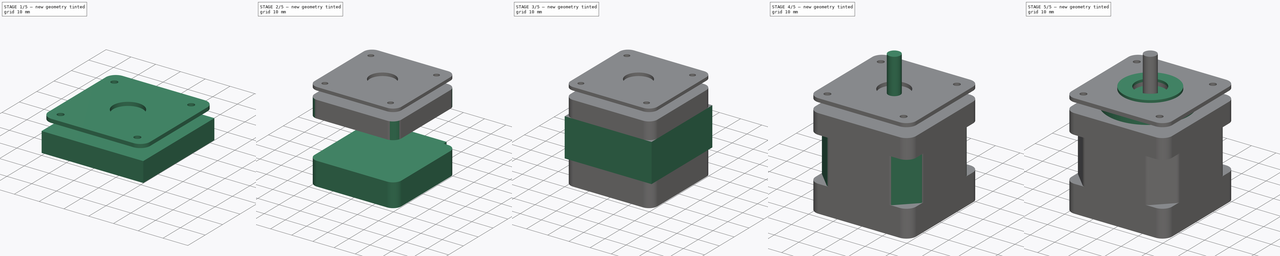
[diagram: build sequence overview — one tinted view per stage of 5, left to right]
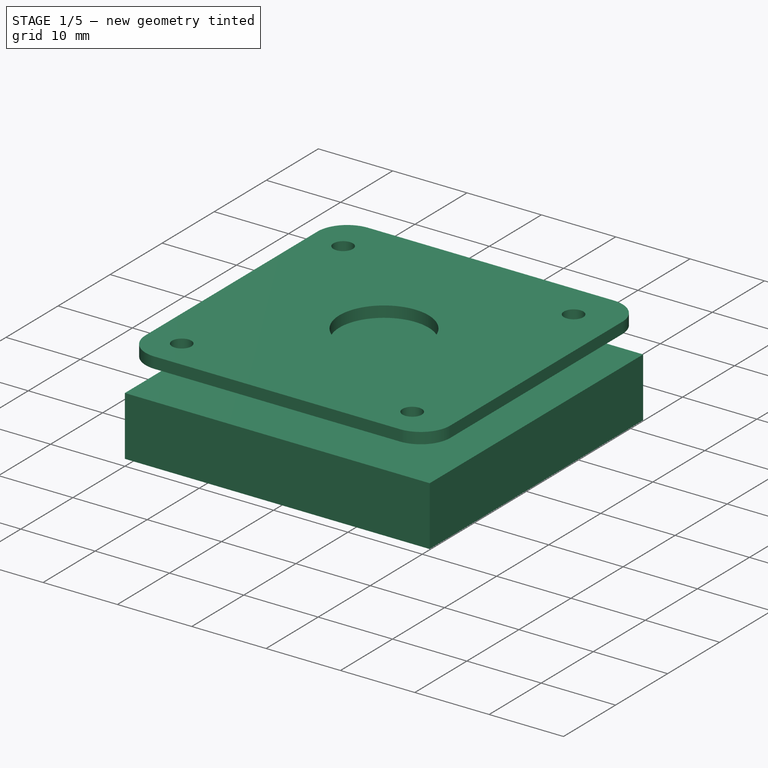
[diagram: stage 1 of 5 — iso view after this stage's code; geometry added in this stage tinted green]
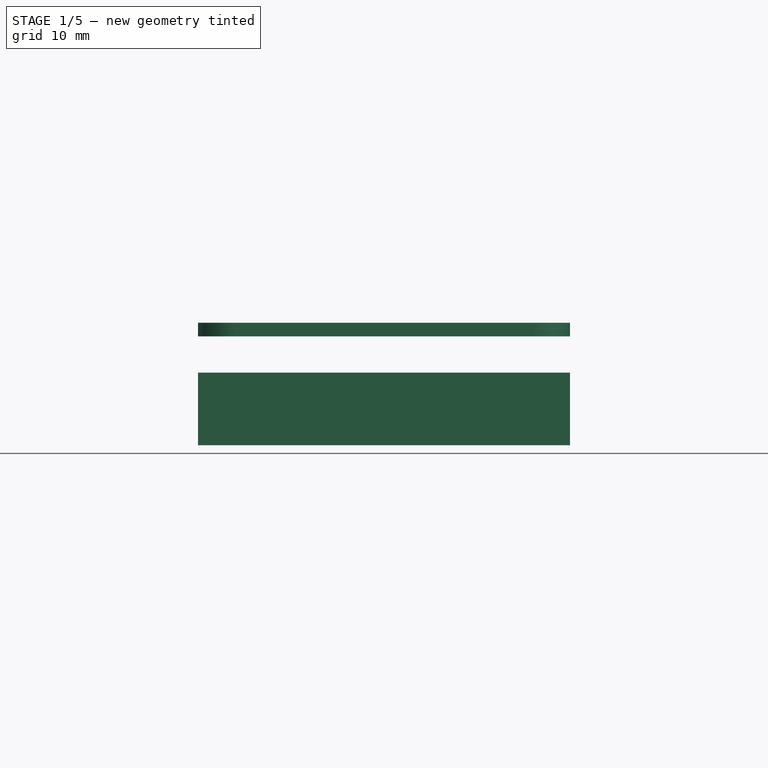
[diagram: stage 1 of 5 — front view after this stage's code; geometry added in this stage tinted green]
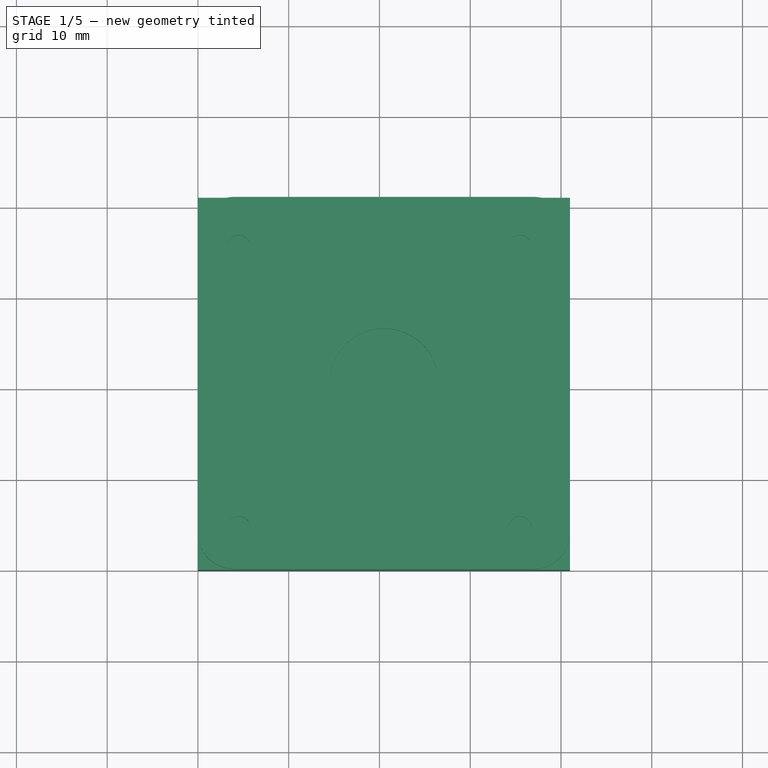
[diagram: stage 1 of 5 — top view after this stage's code; geometry added in this stage tinted green]
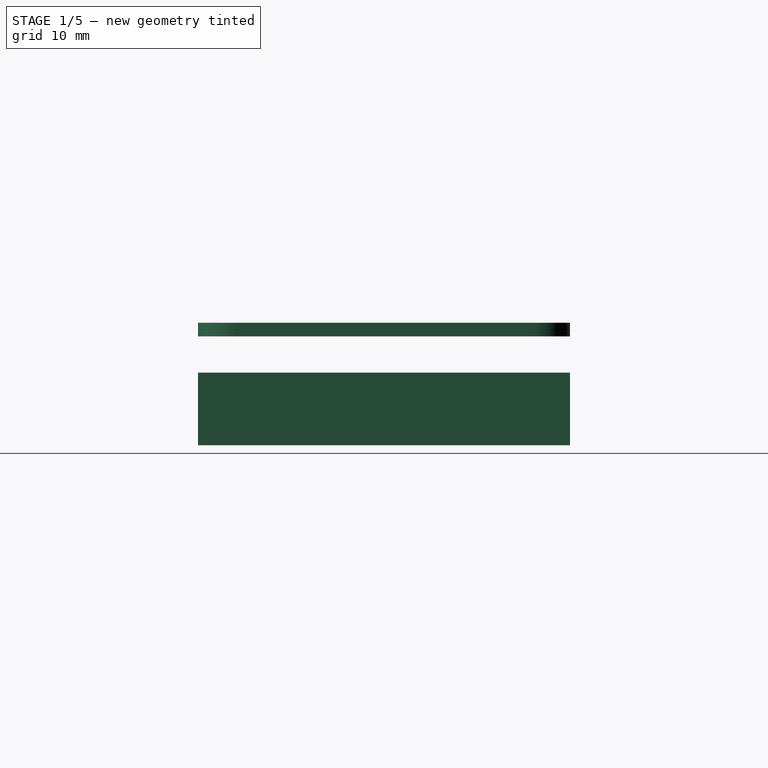
[diagram: stage 1 of 5 — right view after this stage's code; geometry added in this stage tinted green]
FCSTD DOCUMENT  (FreeCAD 0.16R6707 (Git))
Label: Nema17
License: All rights reserved
LicenseURL: http://en.wikipedia.org/wiki/All_rights_reserved
objects: Sketcher::SketchObject×7, PartDesign::Pad×7, PartDesign::Fillet×6, PartDesign::Chamfer×2, Part::MultiFuse×1
note: 30 computed .brp shape members not serialized (recipe doc carries the construction recipe); baked Part::Feature solids carry a one-line shape summary decoded from their .brp

FEATURE [Sketcher::SketchObject] Sketch002
  Placement = pos=(0,0,29) rot=(0,0,1;0rad)
  sketch-geometry (4):
    g0: LineSegment StartX=0 StartY=41 StartZ=0 EndX=41 EndY=41 EndZ=0
    g1: LineSegment StartX=41 StartY=41 StartZ=0 EndX=41 EndY=0 EndZ=0
    g2: LineSegment StartX=41 StartY=0 StartZ=0 EndX=0 EndY=0 EndZ=0
    g3: LineSegment StartX=0 StartY=0 StartZ=0 EndX=0 EndY=41 EndZ=0
  constraints (11):
    c: Coincident(g0,g1)
    c: Coincident(g1,g2)
    c: Coincident(g2,g3)
    c: Coincident(g3,g0)
    c: Horizontal(g0)
    c: Horizontal(g2)
    c: Vertical(g1)
    c: Vertical(g3)
    c: Coincident(g2,g-1)
    c: DistanceX(g2,g2) = 41
    c: DistanceY(g3,g3) = 41
FEATURE [PartDesign::Pad] Pad002
  Length = 8
  Length2 = 100
  Placement = pos=(0,0,29) rot=(0,0,1;0rad)
  Sketch = -> Sketch002
  Type = 0
FEATURE [Sketcher::SketchObject] Sketch004
  Placement = pos=(0,0,41) rot=(0,0,1;0rad)
  sketch-geometry (9):
    g0: LineSegment StartX=0 StartY=41 StartZ=0 EndX=41 EndY=41 EndZ=0
    g1: LineSegment StartX=41 StartY=41 StartZ=0 EndX=41 EndY=0 EndZ=0
    g2: LineSegment StartX=41 StartY=0 StartZ=0 EndX=0 EndY=0 EndZ=0
    g3: LineSegment StartX=0 StartY=0 StartZ=0 EndX=0 EndY=41 EndZ=0
    g4: Circle CenterX=4.5 CenterY=35.5 CenterZ=0 NormalX=0 NormalY=0 NormalZ=1 Radius=1.3
    g5: Circle CenterX=35.5 CenterY=35.5 CenterZ=0 NormalX=0 NormalY=0 NormalZ=1 Radius=1.3
    g6: Circle CenterX=4.5 CenterY=4.5 CenterZ=0 NormalX=0 NormalY=0 NormalZ=1 Radius=1.3
    g7: Circle CenterX=35.5 CenterY=4.5 CenterZ=0 NormalX=0 NormalY=0 NormalZ=1 Radius=1.3
    g8: Circle CenterX=20.5 CenterY=20.5 CenterZ=0 NormalX=0 NormalY=0 NormalZ=1 Radius=6
  constraints (26):
    c: Coincident(g0,g1)
    c: Coincident(g1,g2)
    c: Coincident(g2,g3)
    c: Coincident(g3,g0)
    c: Horizontal(g0)
    c: Horizontal(g2)
    c: Vertical(g1)
    c: Vertical(g3)
    c: Coincident(g2,g-1)
    c: DistanceX(g2,g2) = 41
    c: DistanceY(g3,g3) = 41
    c: Radius(g7) = 1.3
    c: Equal(g7,g5)
    c: Equal(g7,g4)
    c: Equal(g7,g6)
    c: DistanceY(g4,g5) = 0
    c: DistanceY(g6,g7) = 0
    c: DistanceX(g6,g4) = 0
    c: DistanceX(g5,g7) = 0
    c: DistanceX(g4,g5) = 31
    c: DistanceY(g6,g4) = 31
    c: DistanceY(g-1,g6) = 4.5
    c: DistanceX(g-1,g6) = 4.5
    c: Radius(g8) = 6
    c: DistanceY(g-1,g8) = 20.5
    c: DistanceX(g-1,g8) = 20.5
FEATURE [PartDesign::Pad] Pad004
  Length = 1.5
  Length2 = 100
  Placement = pos=(0,0,41) rot=(0,0,1;0rad)
  Sketch = -> Sketch004
  Type = 0
FEATURE [PartDesign::Fillet] Fillet005
  Base = -> Pad004 [Edge5,Edge2,Edge8,Edge1]
  Placement = pos=(0,0,41) rot=(0,0,1;0rad)
  Radius = 4
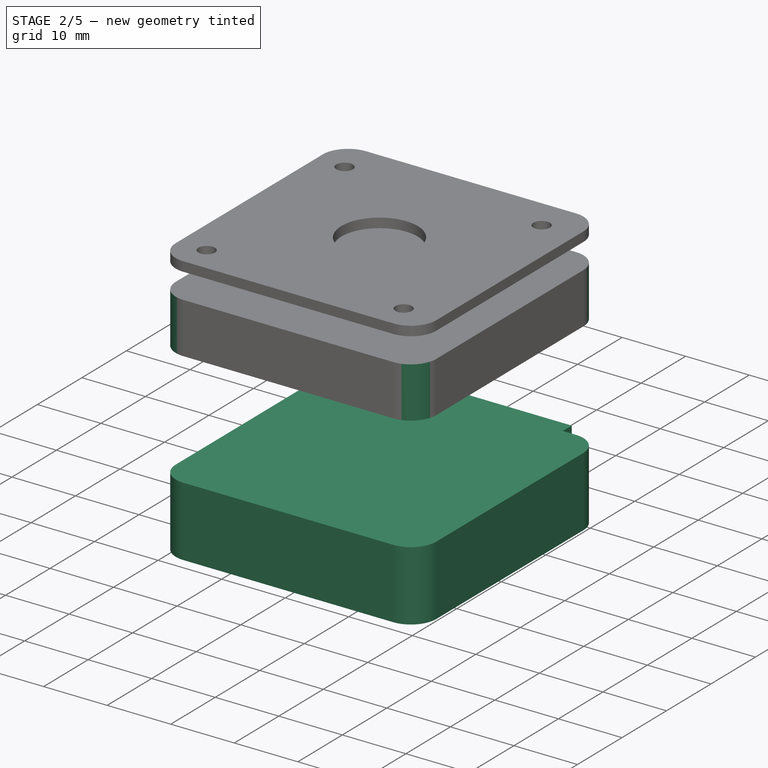
[diagram: stage 2 of 5 — iso view after this stage's code; geometry added in this stage tinted green]
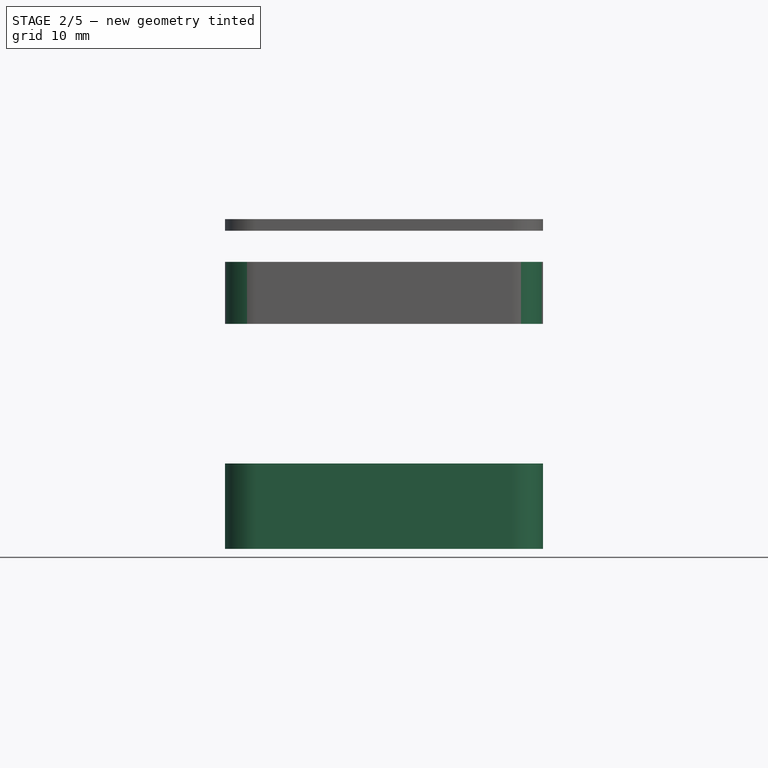
[diagram: stage 2 of 5 — front view after this stage's code; geometry added in this stage tinted green]
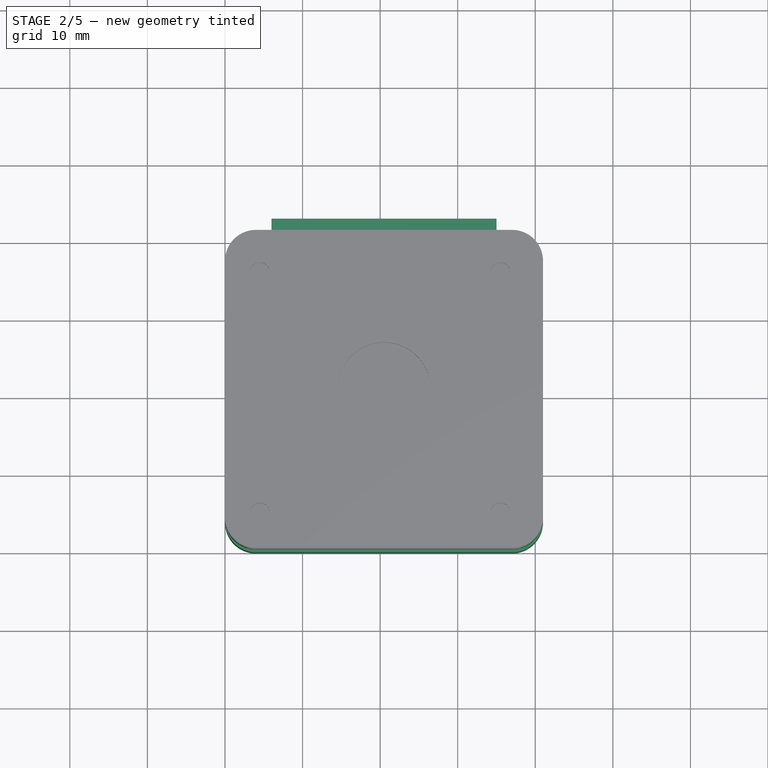
[diagram: stage 2 of 5 — top view after this stage's code; geometry added in this stage tinted green]
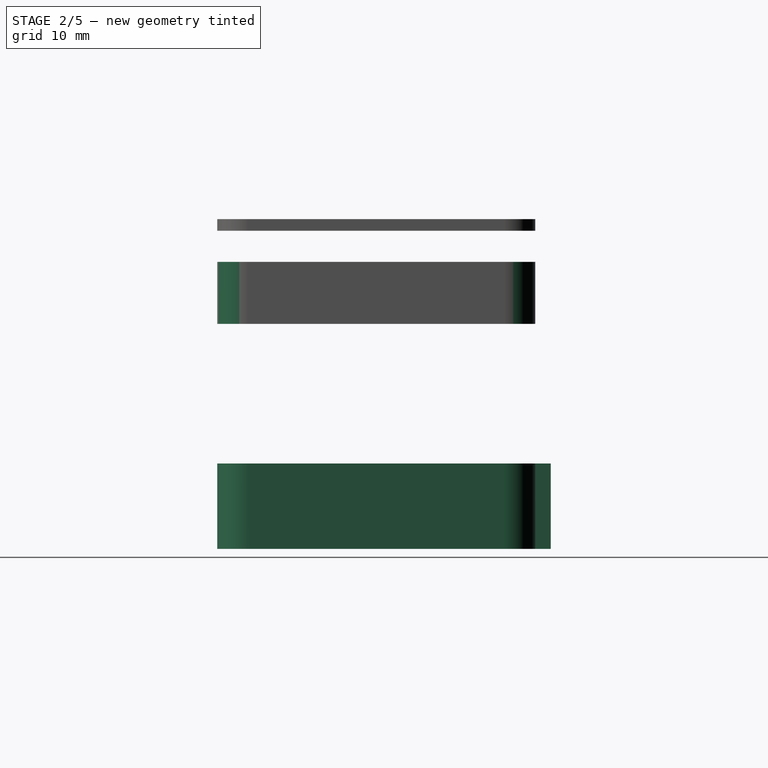
[diagram: stage 2 of 5 — right view after this stage's code; geometry added in this stage tinted green]
FEATURE [Sketcher::SketchObject] Sketch
  sketch-geometry (8):
    g0: LineSegment StartX=0 StartY=41 StartZ=0 EndX=0 EndY=0 EndZ=0
    g1: LineSegment StartX=0 StartY=0 StartZ=0 EndX=41 EndY=0 EndZ=0
    g2: LineSegment StartX=41 StartY=0 StartZ=0 EndX=41 EndY=41 EndZ=0
    g3: LineSegment StartX=41 StartY=41 StartZ=0 EndX=35 EndY=41 EndZ=0
    g4: LineSegment StartX=35 StartY=41 StartZ=0 EndX=35 EndY=43 EndZ=0
    g5: LineSegment StartX=35 StartY=43 StartZ=0 EndX=6 EndY=43 EndZ=0
    g6: LineSegment StartX=6 StartY=43 StartZ=0 EndX=6 EndY=41 EndZ=0
    g7: LineSegment StartX=6 StartY=41 StartZ=0 EndX=0 EndY=41 EndZ=0
  constraints (24):
    c: Vertical(g0)
    c: Coincident(g0,g1)
    c: Horizontal(g1)
    c: Coincident(g1,g2)
    c: Coincident(g2,g3)
    c: Horizontal(g3)
    c: Coincident(g3,g4)
    c: Coincident(g4,g5)
    c: Horizontal(g5)
    c: Coincident(g5,g6)
    c: Vertical(g6)
    c: Coincident(g6,g7)
    c: Coincident(g7,g0)
    c: Vertical(g4)
    c: Vertical(g2)
    c: Equal(g2,g0)
    c: Horizontal(g7)
    c: Equal(g7,g3)
    c: Equal(g6,g4)
    c: DistanceX(g1,g1) = 41
    c: DistanceY(g0,g0) = 41
    c: Coincident(g0,g-1)
    c: DistanceY(g6,g6) = 2
    c: DistanceX(g5,g5) = 29
FEATURE [PartDesign::Pad] Pad
  Length = 11
  Length2 = 100
  Sketch = -> Sketch
  Type = 0
FEATURE [PartDesign::Fillet] Fillet001
  Base = -> Pad [Edge2,Edge5,Edge1,Edge8]
  Radius = 4
FEATURE [PartDesign::Fillet] Fillet004
  Base = -> Pad002 [Edge1,Edge2,Edge8,Edge5]
  Placement = pos=(0,0,29) rot=(0,0,1;0rad)
  Radius = 4
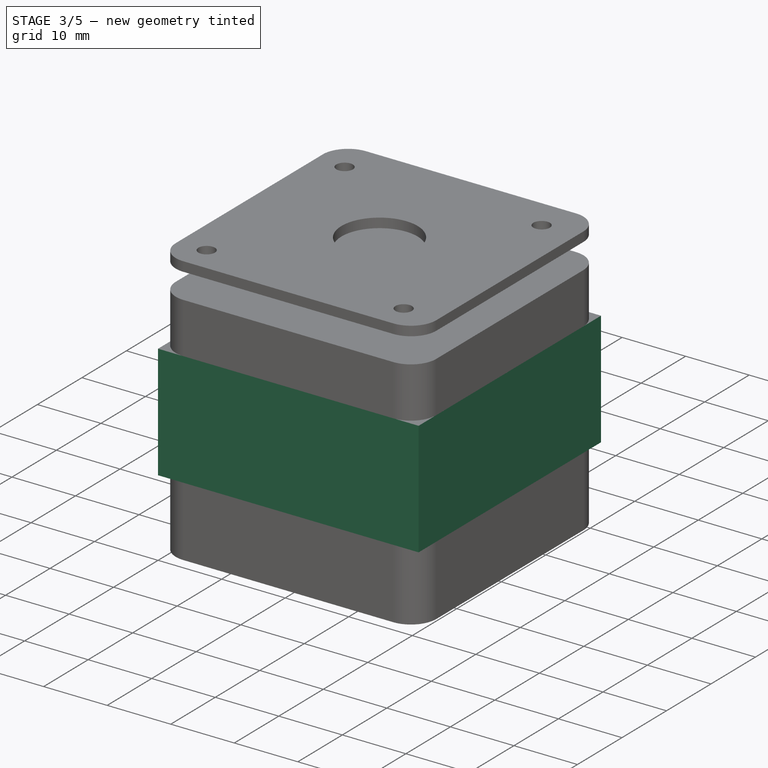
[diagram: stage 3 of 5 — iso view after this stage's code; geometry added in this stage tinted green]
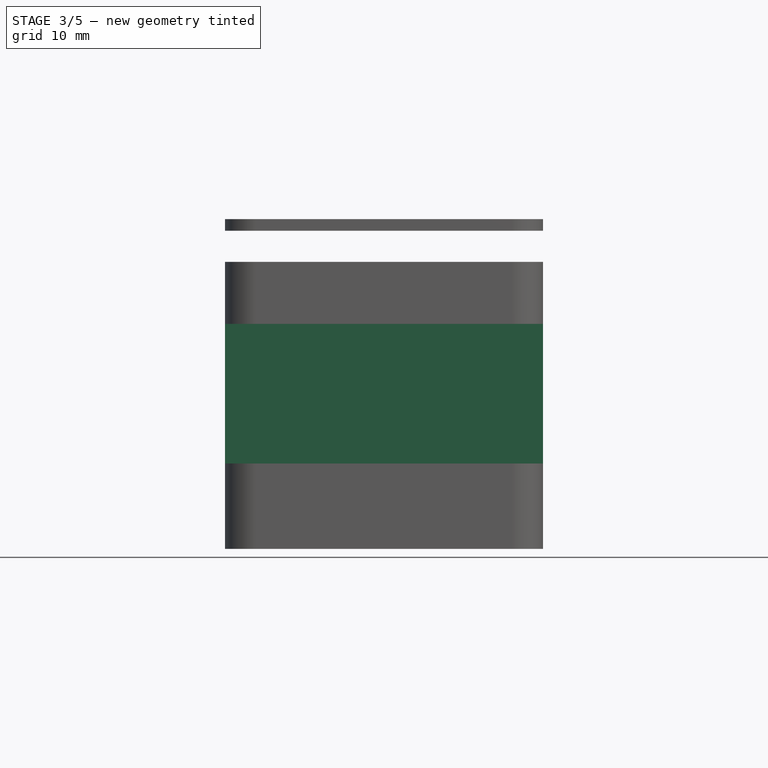
[diagram: stage 3 of 5 — front view after this stage's code; geometry added in this stage tinted green]
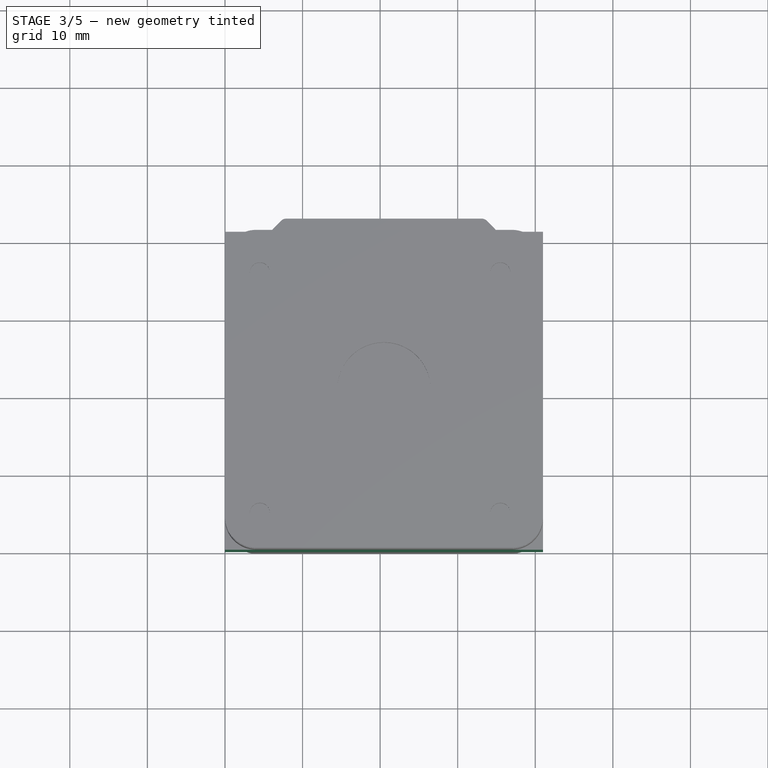
[diagram: stage 3 of 5 — top view after this stage's code; geometry added in this stage tinted green]
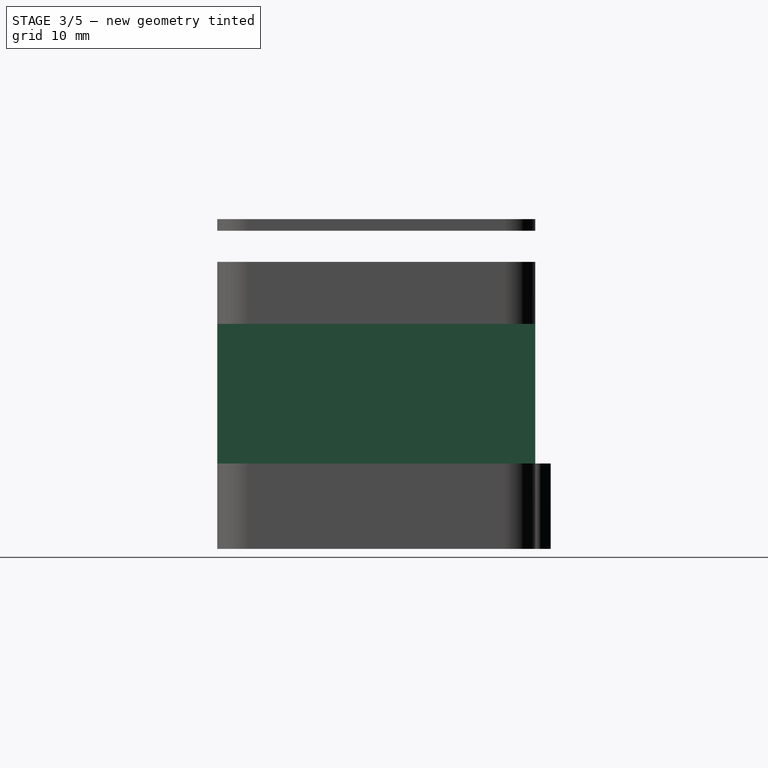
[diagram: stage 3 of 5 — right view after this stage's code; geometry added in this stage tinted green]
FEATURE [Sketcher::SketchObject] Sketch001
  Placement = pos=(0,0,11) rot=(0,0,1;0rad)
  sketch-geometry (4):
    g0: LineSegment StartX=0 StartY=41 StartZ=0 EndX=41 EndY=41 EndZ=0
    g1: LineSegment StartX=41 StartY=41 StartZ=0 EndX=41 EndY=0 EndZ=0
    g2: LineSegment StartX=41 StartY=0 StartZ=0 EndX=0 EndY=0 EndZ=0
    g3: LineSegment StartX=0 StartY=0 StartZ=0 EndX=0 EndY=41 EndZ=0
  constraints (11):
    c: Coincident(g0,g1)
    c: Coincident(g1,g2)
    c: Coincident(g2,g3)
    c: Coincident(g3,g0)
    c: Horizontal(g0)
    c: Horizontal(g2)
    c: Vertical(g1)
    c: Vertical(g3)
    c: Coincident(g2,g-1)
    c: DistanceY(g3,g3) = 41
    c: DistanceX(g0,g0) = 41
FEATURE [PartDesign::Pad] Pad001
  Length = 18
  Length2 = 100
  Placement = pos=(0,0,11) rot=(0,0,1;0rad)
  Sketch = -> Sketch001
  Type = 0
FEATURE [PartDesign::Chamfer] Chamfer001
  Base = -> Fillet001 [Edge31,Edge33]
  Size = 1.5
FEATURE [PartDesign::Fillet] Fillet002
  Base = -> Chamfer001 [Edge22,Edge18]
  Radius = 1
FEATURE [PartDesign::Fillet] Fillet003
  Base = -> Fillet002 [Edge32,Edge18]
  Radius = 1
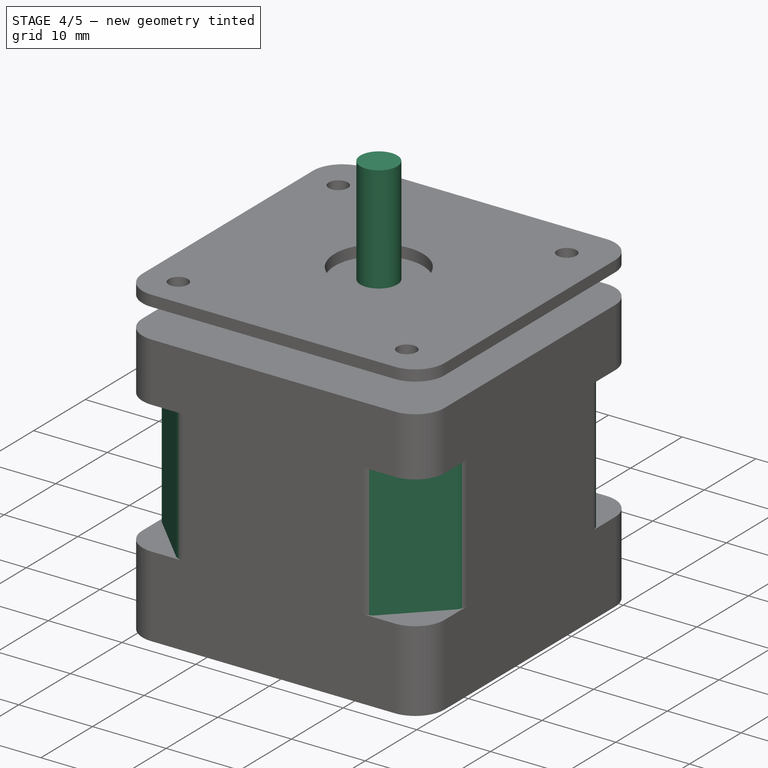
[diagram: stage 4 of 5 — iso view after this stage's code; geometry added in this stage tinted green]
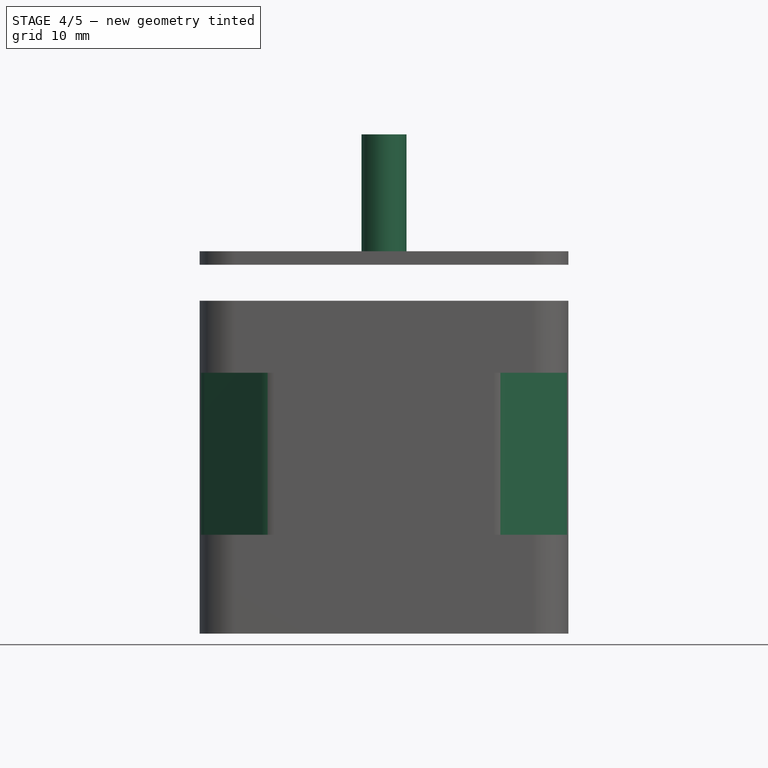
[diagram: stage 4 of 5 — front view after this stage's code; geometry added in this stage tinted green]
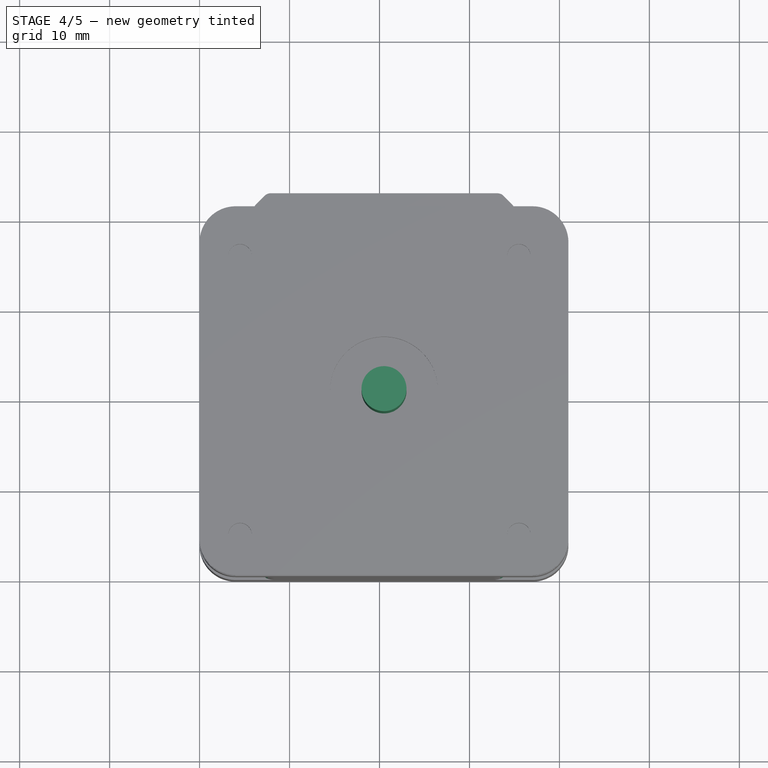
[diagram: stage 4 of 5 — top view after this stage's code; geometry added in this stage tinted green]
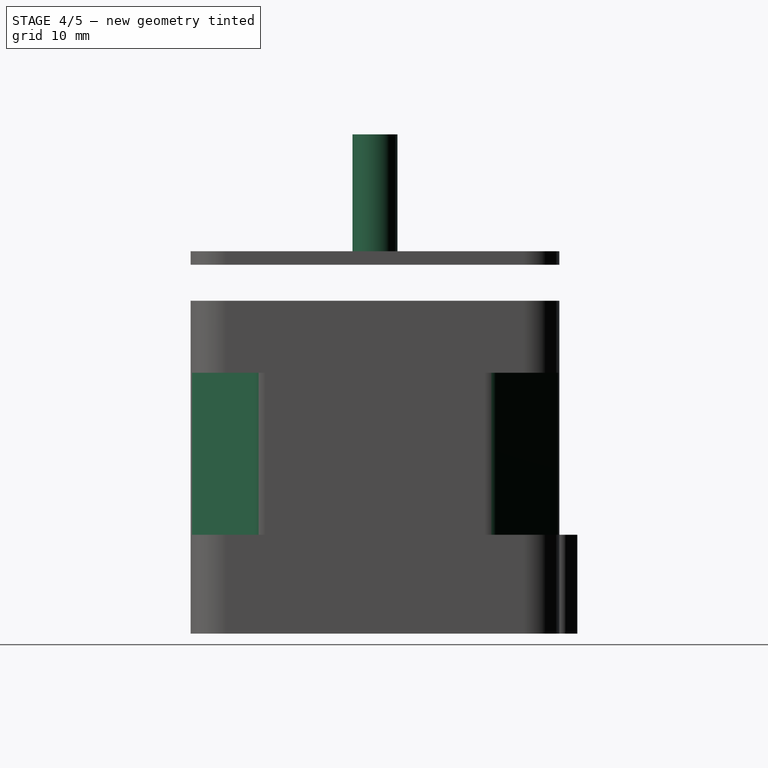
[diagram: stage 4 of 5 — right view after this stage's code; geometry added in this stage tinted green]
FEATURE [Sketcher::SketchObject] Sketch006
  Placement = pos=(0,0,41) rot=(0,0,1;0rad)
  sketch-geometry (1):
    g0: Circle CenterX=20.5 CenterY=20.5 CenterZ=0 NormalX=0 NormalY=0 NormalZ=1 Radius=2.5
  constraints (3):
    c: DistanceX(g-1,g0) = 20.5
    c: Radius(g0) = 2.5
    c: DistanceY(g-1,g0) = 20.5
FEATURE [PartDesign::Pad] Pad006
  Length = 14.5
  Length2 = 100
  Placement = pos=(0,0,41) rot=(0,0,1;0rad)
  Sketch = -> Sketch006
  Type = 0
FEATURE [PartDesign::Chamfer] Chamfer
  Base = -> Pad001 [Edge1,Edge2,Edge5,Edge8]
  Placement = pos=(0,0,11) rot=(0,0,1;0rad)
  Size = 7.5
FEATURE [PartDesign::Fillet] Fillet
  Base = -> Chamfer [Edge24,Edge22,Edge23,Edge21,Edge12,Edge2,Edge3,Edge14]
  Placement = pos=(0,0,11) rot=(0,0,1;0rad)
  Radius = 2
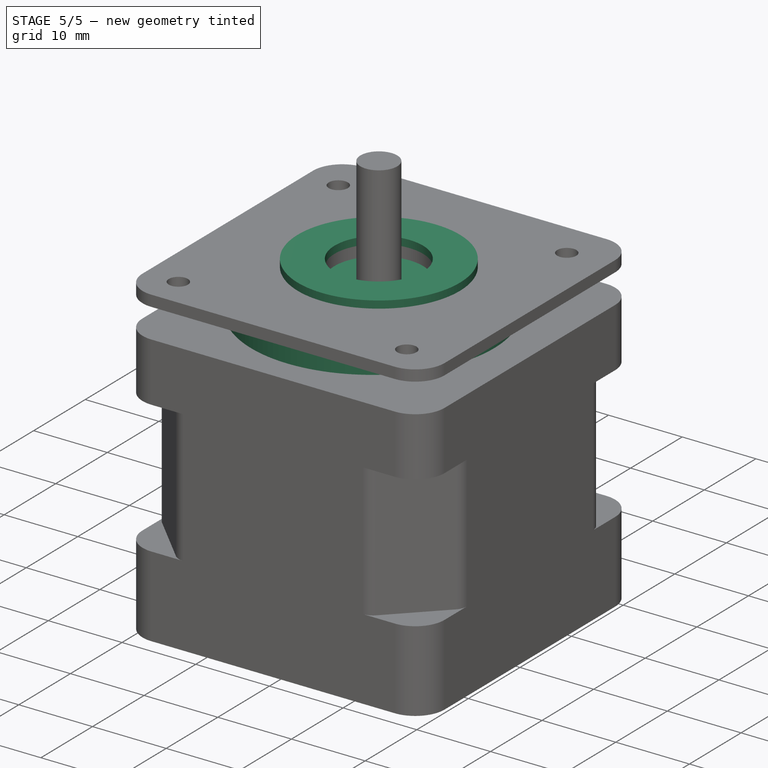
[diagram: stage 5 of 5 — iso view after this stage's code; geometry added in this stage tinted green]
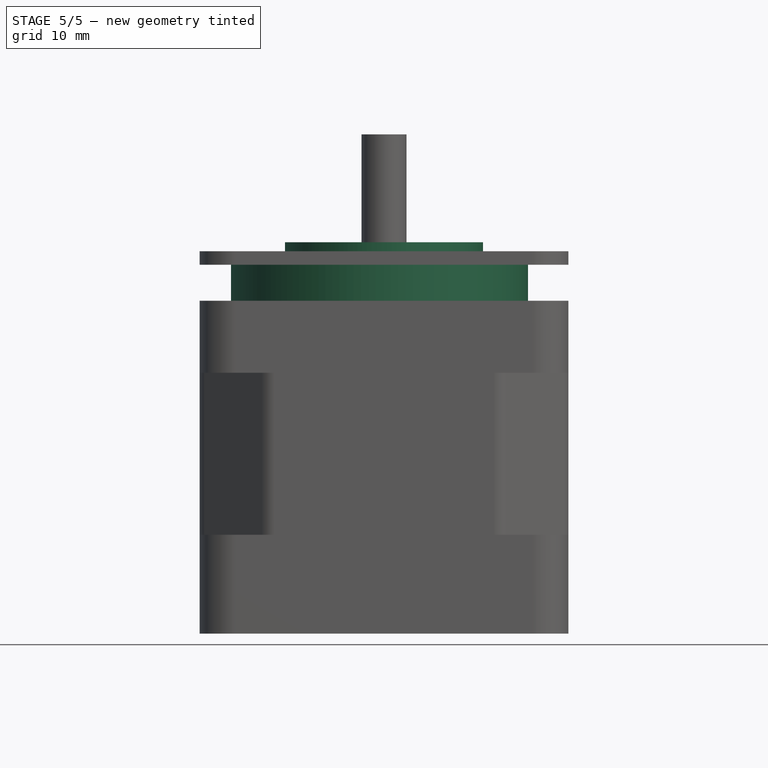
[diagram: stage 5 of 5 — front view after this stage's code; geometry added in this stage tinted green]
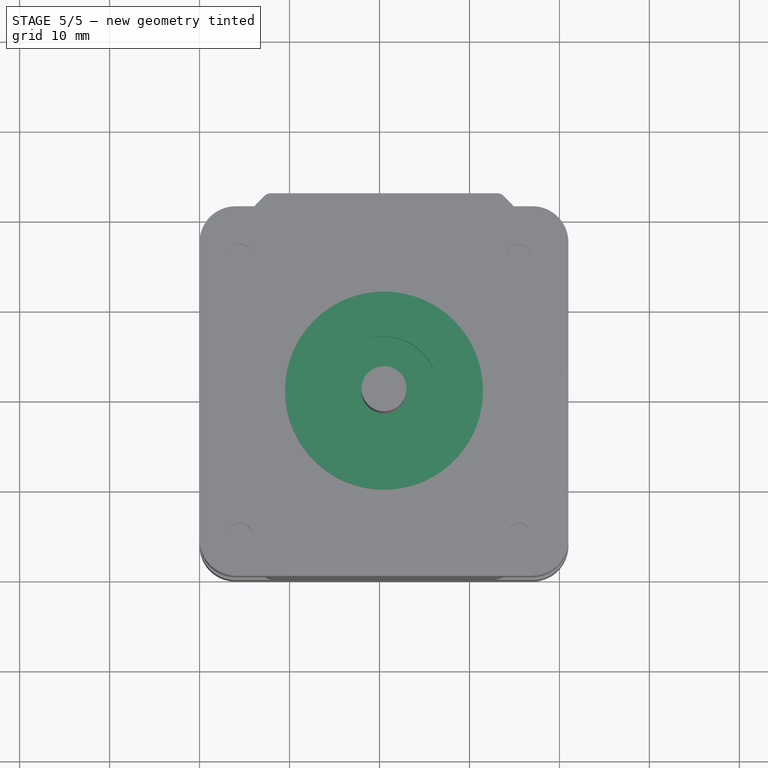
[diagram: stage 5 of 5 — top view after this stage's code; geometry added in this stage tinted green]
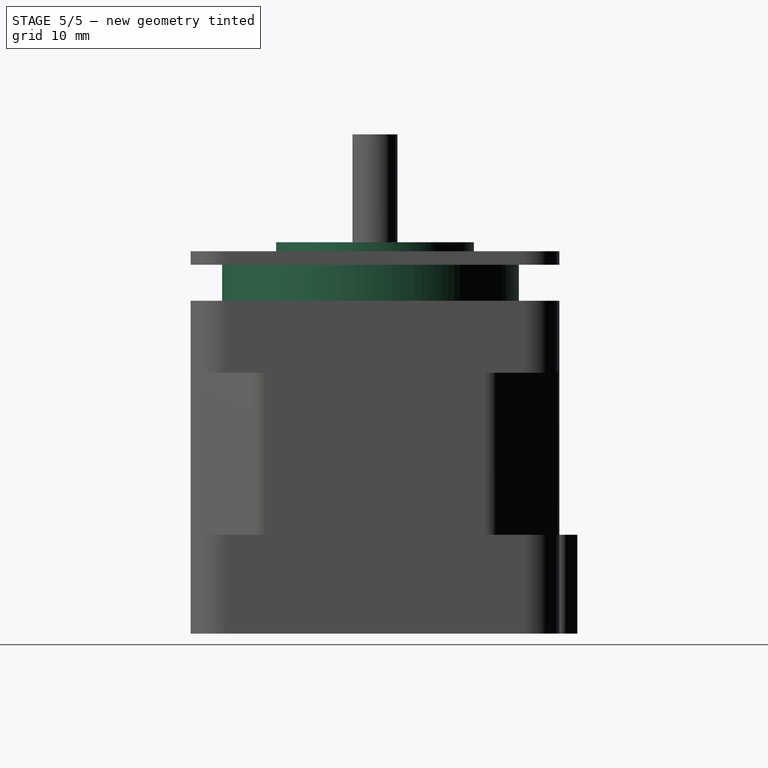
[diagram: stage 5 of 5 — right view after this stage's code; geometry added in this stage tinted green]
FEATURE [Sketcher::SketchObject] Sketch003
  Placement = pos=(0,0,37) rot=(0,0,1;0rad)
  sketch-geometry (1):
    g0: Circle CenterX=20 CenterY=20 CenterZ=0 NormalX=0 NormalY=0 NormalZ=1 Radius=16.5
  constraints (3):
    c: DistanceX(g-1,g0) = 20
    c: DistanceY(g-1,g0) = 20
    c: Radius(g0) = 16.5
FEATURE [PartDesign::Pad] Pad003
  Length = 4
  Length2 = 100
  Placement = pos=(0,0,37) rot=(0,0,1;0rad)
  Sketch = -> Sketch003
  Type = 0
FEATURE [Sketcher::SketchObject] Sketch005
  Placement = pos=(0,0,42.5) rot=(0,0,1;0rad)
  sketch-geometry (2):
    g0: Circle CenterX=20.5 CenterY=20.5 CenterZ=0 NormalX=0 NormalY=0 NormalZ=1 Radius=11
    g1: Circle CenterX=20.5 CenterY=20.5 CenterZ=0 NormalX=0 NormalY=0 NormalZ=1 Radius=6
  constraints (5):
    c: Radius(g1) = 6
    c: Coincident(g1,g0)
    c: DistanceY(g-1,g0) = 20.5
    c: DistanceX(g-1,g0) = 20.5
    c: Radius(g0) = 11
FEATURE [PartDesign::Pad] Pad005
  Length = 1
  Length2 = 100
  Placement = pos=(0,0,42.5) rot=(0,0,1;0rad)
  Sketch = -> Sketch005
  Type = 0
FEATURE [Part::MultiFuse] Fusion
  Shapes = -> [Pad003,Pad005,Pad006,Fillet,Fillet003,Fillet004,Fillet005]
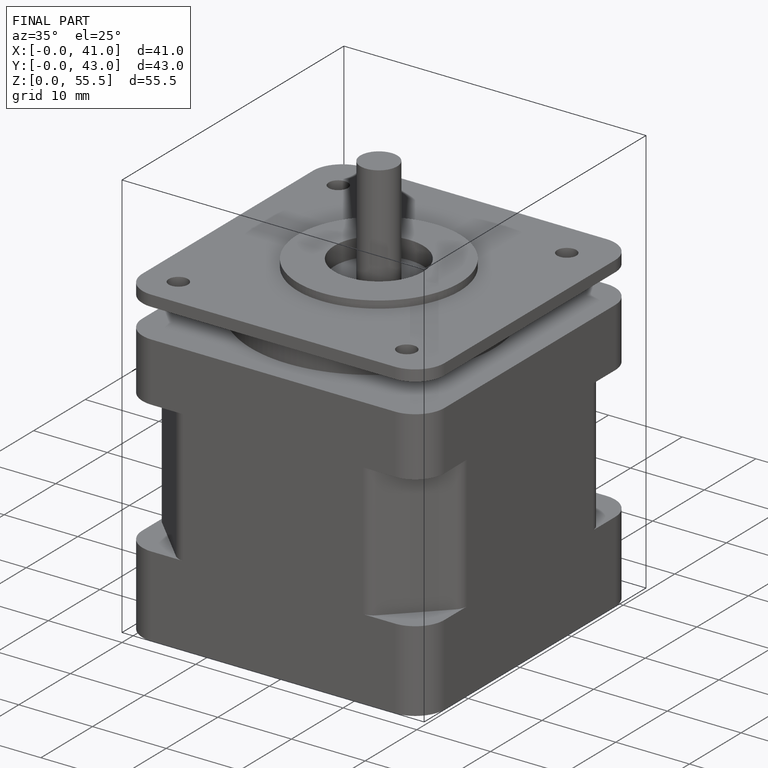
[diagram: finished part — iso view with bounding-box wireframe]
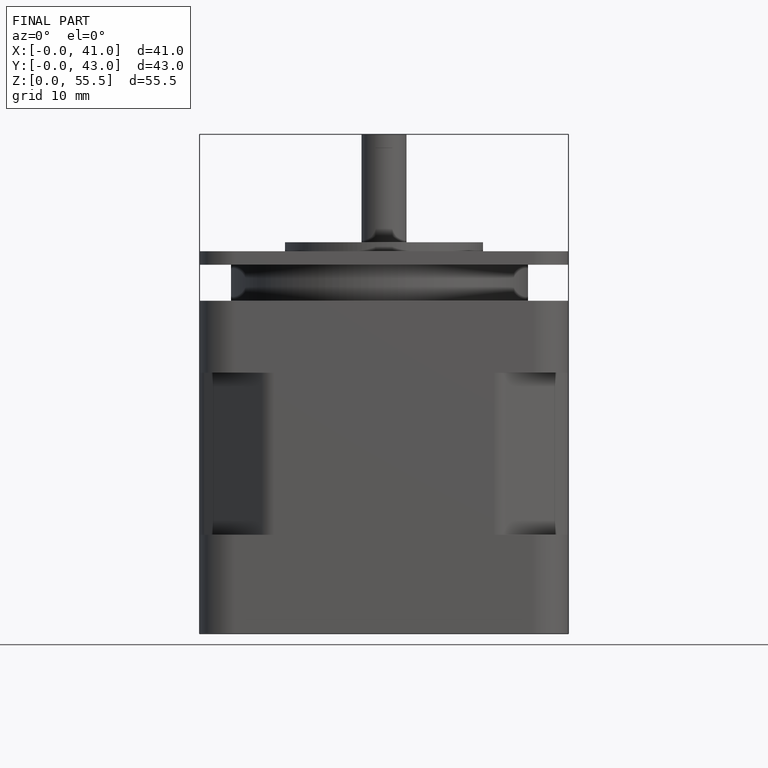
[diagram: finished part — front view with bounding-box wireframe]
